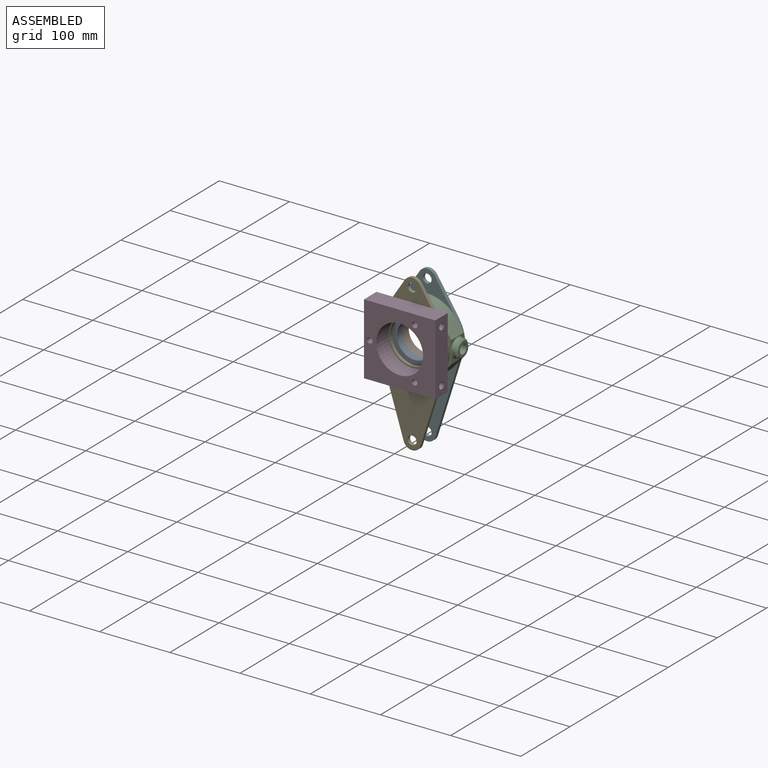
[diagram: assembled view]
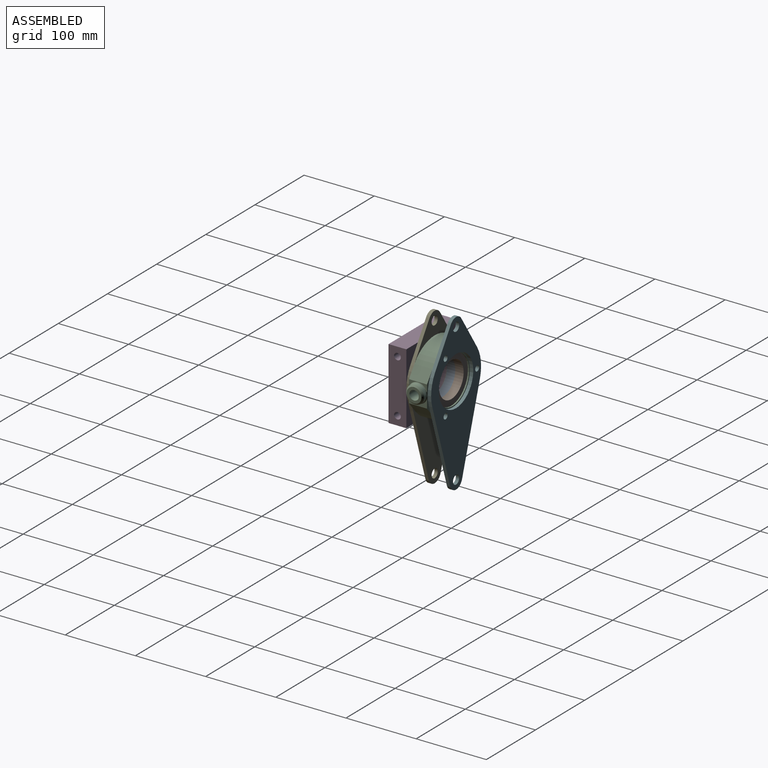
[diagram: assembled view, second angle]
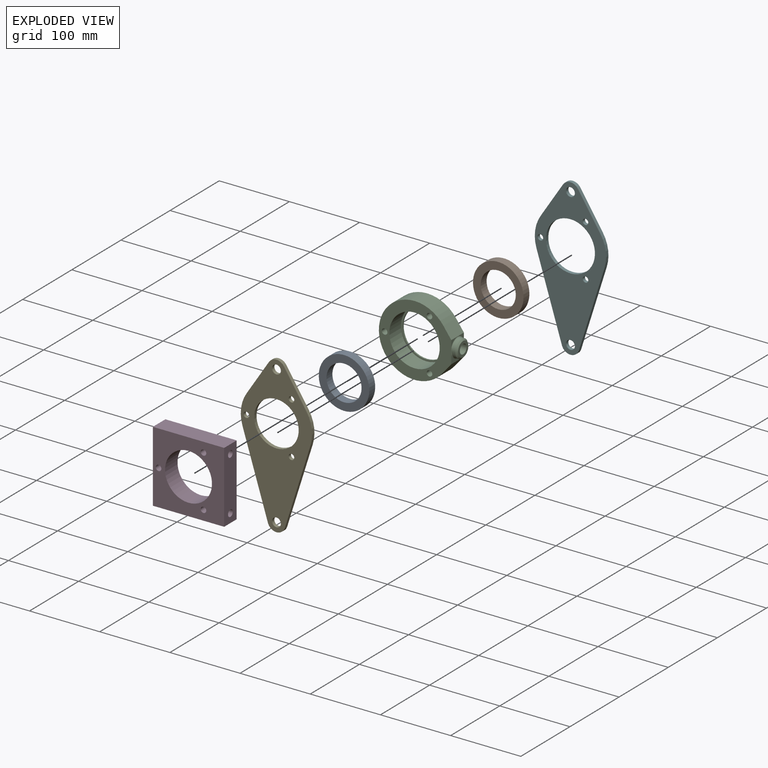
[diagram: exploded view]
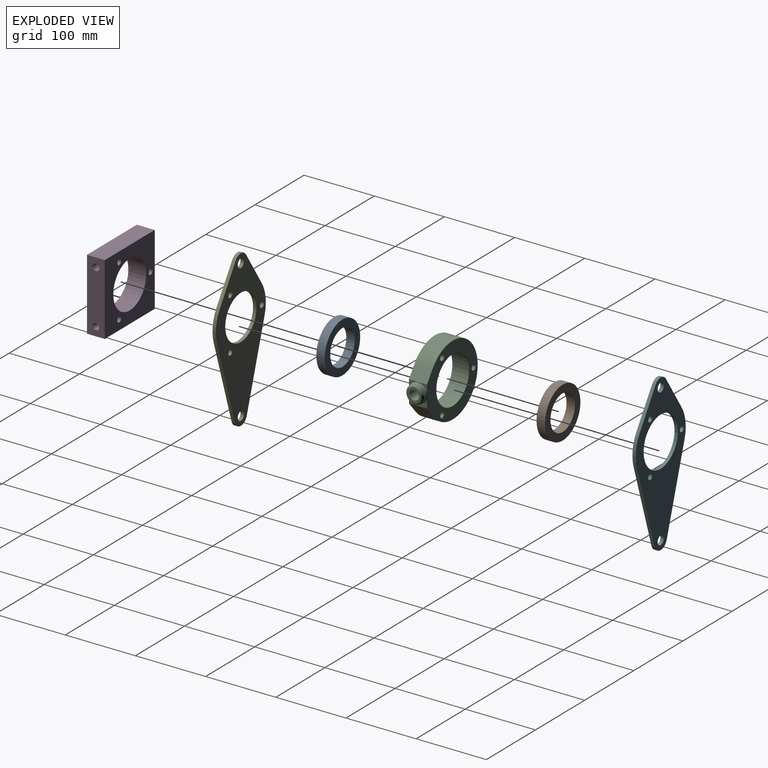
[diagram: exploded view, second angle]
ASSEMBLY  parts=6 mates=5
PART A: 4 faces, bbox 72x12x72 mm
  f0: cylinder r=25mm len=50mm, axis (0,1,0), area 1885mm2, adj f2,f3
  f1: cylinder r=36mm len=72mm, axis (0,1,0), area 2714.3mm2, adj f2,f3
  f2: plane 72x72mm, normal (0,-1,0), area 2108mm2, adj f0,f1
  f3: plane 72x72mm, normal (0,1,0), area 2108mm2, adj f0,f1
PART B: same geometry as A
PART C: 21 faces, bbox 111.2x29.7x101.7 mm
  f0: cylinder r=35.94mm len=71.88mm, axis (0,1,0), area 5220mm2, adj f2,f12,f20
  f1: plane 25.65x8.75mm, normal (1,0,0), area 68.5mm2, adj f4,f11,f12,f16
  f2: plane 71.88x71.88mm, normal (0,-1,0), area 542.7mm2, adj f0,f10
  f3: plane 25.65x11.29mm, normal (1,0,0), area 133.6mm2, adj f9,f11,f12,f17
  f4: plane 25.65x15.53mm, normal (0.81,0,0.59), area 492.1mm2, adj f1,f5,f11,f12
  f5: cylinder r=50.8mm len=101.6mm, axis (0,1,0), area 6451.9mm2, adj f4,f9,f11,f12
  f6: cylinder r=3.97mm len=25.65mm, axis (0,1,0), area 639.7mm2, adj f11,f12
  f7: cylinder r=3.97mm len=25.65mm, axis (0,1,0), area 639.7mm2, adj f11,f12
  f8: cylinder r=3.97mm len=25.65mm, axis (0,1,0), area 639.7mm2, adj f11,f12
  f9: plane 25.65x16.1mm, normal (0.76,0,-0.65), area 542.4mm2, adj f3,f5,f11,f12
  f10: cylinder r=33.45mm len=66.9mm, axis (0,1,0), area 400.4mm2, adj f2,f11
  f11: plane 103.3x101.72mm, normal (0,1,0), area 4563.3mm2, adj f1,f3,f4,f5,f6,f7,f8,f9
  f12: plane 103.3x101.72mm, normal (0,-1,0), area 4020.6mm2, adj f0,f1,f3,f4,f5,f6,f7,f8
  f13: cylinder r=12.7mm len=25.4mm, axis (-1,0,0), area 366.9mm2, adj f15,f16,f17,f18,f19
  f14: plane 21.08x21.08mm, normal (1,0,0), area 206.1mm2, adj f19,f20
  f15: bspline ~11.54x1.41mm, area 11.8mm2, adj f11,f13,f16,f17
  f16: torus R=13.97mm, axis (-1,0,0), area 61.1mm2, adj f1,f13,f15,f18
  f17: torus R=13.97mm, axis (-1,0,0), area 61.1mm2, adj f3,f13,f15,f18
  f18: bspline ~11.54x1.41mm, area 11.8mm2, adj f12,f13,f16,f17
  f19: cone r=10.54mm half-angle=45deg, axis (-1,0,0), area 222.9mm2, adj f13,f14
  f20: cylinder r=6.75mm len=25.02mm, axis (1,0,0), area 1047.1mm2, adj f0,f14
PART D: 18 faces, bbox 101.6x25.4x101.6 mm
  f0: plane 101.6x25.4mm, normal (0,0,-1), area 2580.6mm2, adj f1,f6,f8,f9
  f1: plane 101.6x25.4mm, normal (1,0,0), area 2438.1mm2, adj f0,f2,f8,f9,f10,f12
  f2: plane 101.6x25.4mm, normal (0,0,1), area 2580.6mm2, adj f1,f6,f8,f9
  f3: cylinder r=3.97mm len=25.4mm, axis (0,1,0), area 633.4mm2, adj f8,f9
  f4: cylinder r=33.45mm len=66.9mm, axis (0,1,0), area 5338.7mm2, adj f8,f9
  f5: cylinder r=3.97mm len=25.4mm, axis (0,1,0), area 633.4mm2, adj f8,f9
  f6: plane 101.6x25.4mm, normal (-1,0,0), area 2438.1mm2, adj f0,f2,f8,f9,f14,f16
  f7: cylinder r=3.97mm len=25.4mm, axis (0,1,0), area 633.4mm2, adj f8,f9
  f8: plane 101.6x101.6mm, normal (0,-1,0), area 6658.6mm2, adj f0,f1,f2,f3,f4,f5,f6,f7
  f9: plane 101.6x101.6mm, normal (0,1,0), area 6658.6mm2, adj f0,f1,f2,f3,f4,f5,f6,f7
  f10: cylinder r=4.76mm len=12.7mm, axis (1,0,0), area 380mm2, adj f1,f11
  f11: plane 9.53x9.53mm, normal (1,0,0), area 71.3mm2, adj f10
  f12: cylinder r=4.76mm len=12.7mm, axis (1,0,0), area 380mm2, adj f1,f13
  f13: plane 9.53x9.53mm, normal (1,0,0), area 71.3mm2, adj f12
  f14: cylinder r=4.76mm len=12.7mm, axis (-1,0,0), area 380mm2, adj f6,f15
  f15: plane 9.53x9.53mm, normal (-1,0,0), area 71.3mm2, adj f14
  f16: cylinder r=4.76mm len=12.7mm, axis (-1,0,0), area 380mm2, adj f6,f17
  f17: plane 9.53x9.53mm, normal (-1,0,0), area 71.3mm2, adj f16
PART E: 16 faces, bbox 101.6x4.8x222.3 mm
  f0: plane 115.57x36.35mm, normal (0.95,0,-0.3), area 584.7mm2, adj f1,f13,f14,f15
  f1: cylinder r=50.8mm len=42.97mm, axis (0,1,0), area 216.2mm2, adj f0,f2,f14,f15
  f2: plane 49.06x31.95mm, normal (0.84,0,0.55), area 282.5mm2, adj f1,f3,f14,f15
  f3: cylinder r=12.7mm len=21.29mm, axis (0,1,0), area 121.8mm2, adj f2,f4,f14,f15
  f4: plane 49.08x31.91mm, normal (-0.84,0,0.55), area 282.5mm2, adj f3,f5,f14,f15
  f5: cylinder r=50.8mm len=42.95mm, axis (0,1,0), area 216.1mm2, adj f4,f6,f14,f15
  f6: plane 114.47x36.05mm, normal (-0.95,0,-0.3), area 579.2mm2, adj f5,f13,f14,f15
  f7: cylinder r=6.29mm len=12.57mm, axis (0,1,0), area 190.6mm2, adj f14,f15
  f8: cylinder r=6.29mm len=12.57mm, axis (0,1,0), area 190.6mm2, adj f14,f15
  f9: cylinder r=3.98mm len=7.95mm, axis (0,1,0), area 120.5mm2, adj f14,f15
  f10: cylinder r=3.97mm len=7.94mm, axis (0,1,0), area 120.3mm2, adj f14,f15
  f11: cylinder r=31.75mm len=63.5mm, axis (0,1,0), area 962.7mm2, adj f14,f15
  f12: cylinder r=3.98mm len=7.95mm, axis (0,1,0), area 120.5mm2, adj f14,f15
  f13: cylinder r=12.7mm len=24.52mm, axis (0,1,0), area 160.6mm2, adj f0,f6,f14,f15
  f14: plane 222.25x101.6mm, normal (0,-1,0), area 10483.3mm2, adj f0,f1,f2,f3,f4,f5,f6,f7
  f15: plane 222.25x101.6mm, normal (0,1,0), area 10483.3mm2, adj f0,f1,f2,f3,f4,f5,f6,f7
PART F: 16 faces, bbox 101.6x4.8x222.3 mm
  f0: plane 115.57x36.35mm, normal (0.95,0,-0.3), area 584.7mm2, adj f1,f13,f14,f15
  f1: cylinder r=50.8mm len=42.97mm, axis (0,1,0), area 216.2mm2, adj f0,f2,f14,f15
  f2: plane 49.06x31.95mm, normal (0.84,0,0.55), area 282.5mm2, adj f1,f3,f14,f15
  f3: cylinder r=12.7mm len=21.29mm, axis (0,1,0), area 121.8mm2, adj f2,f4,f14,f15
  f4: plane 49.08x31.91mm, normal (-0.84,0,0.55), area 282.5mm2, adj f3,f5,f14,f15
  f5: cylinder r=50.8mm len=42.95mm, axis (0,1,0), area 216.1mm2, adj f4,f6,f14,f15
  f6: plane 114.47x36.05mm, normal (-0.95,0,-0.3), area 579.2mm2, adj f5,f13,f14,f15
  f7: cylinder r=6.29mm len=12.57mm, axis (0,1,0), area 190.6mm2, adj f14,f15
  f8: cylinder r=6.29mm len=12.57mm, axis (0,1,0), area 190.6mm2, adj f14,f15
  f9: cylinder r=3.97mm len=7.94mm, axis (0,1,0), area 120.3mm2, adj f14,f15
  f10: cylinder r=34.92mm len=69.85mm, axis (0,1,0), area 1059mm2, adj f14,f15
  f11: cylinder r=3.98mm len=7.95mm, axis (0,1,0), area 120.5mm2, adj f14,f15
  f12: cylinder r=3.98mm len=7.95mm, axis (0,1,0), area 120.5mm2, adj f14,f15
  f13: cylinder r=12.7mm len=24.52mm, axis (0,1,0), area 160.6mm2, adj f0,f6,f14,f15
  f14: plane 222.25x101.6mm, normal (0,-1,0), area 9818.2mm2, adj f0,f1,f2,f3,f4,f5,f6,f7
  f15: plane 222.25x101.6mm, normal (0,1,0), area 9818.2mm2, adj f0,f1,f2,f3,f4,f5,f6,f7
PLACE A t=(16.12,29.4,27.63)mm
PLACE B t=(16.12,41.4,27.63)mm
PLACE C t=(16.12,43.3,27.63)mm fixed
PLACE D t=(16.12,12.82,27.63)mm
PLACE E rot(axis=(0,0,1),180deg) t=(16.12,15.23,27.63)mm
PLACE F rot(axis=(0,0,1),180deg) t=(16.12,45.71,27.63)mm
MATE fastened B.f0 <-> C.f0  axis (0,1,0) through (16.12,41.4,27.63)mm
MATE fastened A.f0 <-> B.f0  axis (0,1,0) through (16.12,29.4,27.63)mm
MATE fastened E.f11 <-> C.f0  axis (0,1,0) through (16.12,17.65,27.63)mm
MATE fastened F.f10 <-> C.f10  axis (0,-1,0) through (16.12,43.3,27.63)mm
MATE fastened D.f4 <-> E.f11  axis (0,1,0) through (16.12,12.82,27.63)mm
